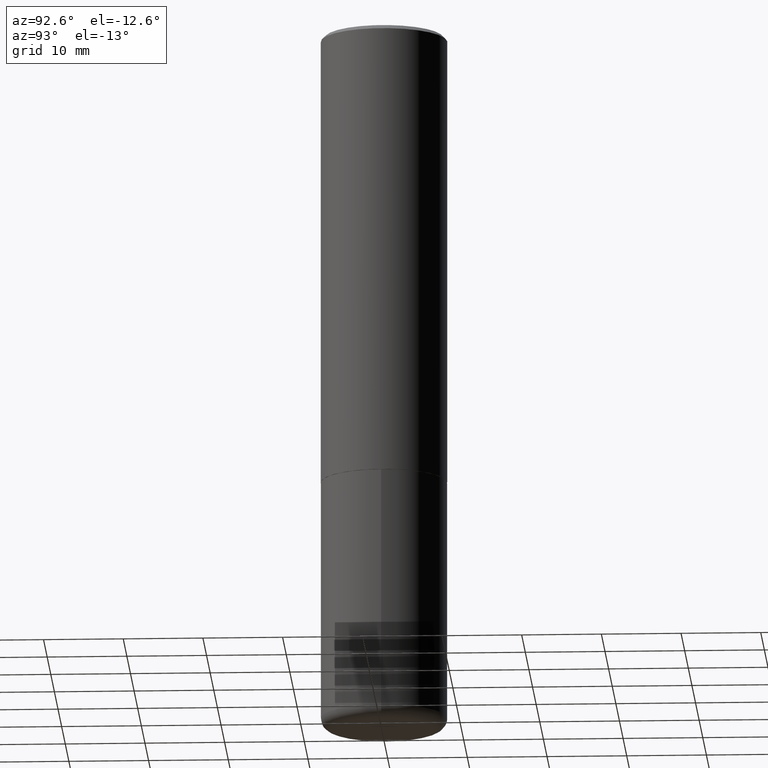
[diagram: clean part render]
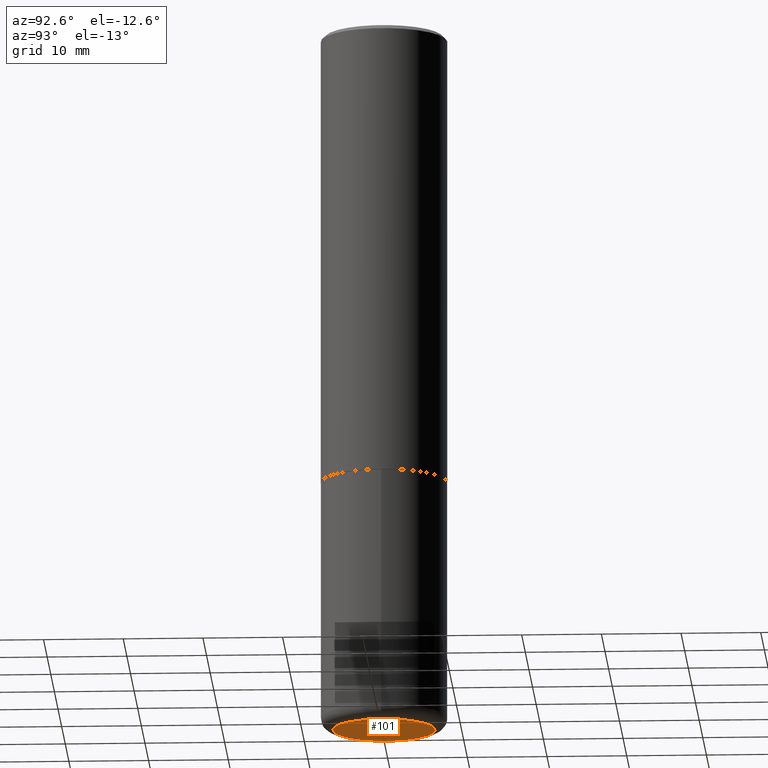
[diagram: same view with one face highlighted and labeled with its STEP entity id]
A machine part, auxiliary view. The second image highlights one B-rep face of the part: STEP entity #101.
In plain terms, the highlighted planar face has unit normal (0, -0, -1).
Its self-contained STEP definition (entity closure, byte-faithful):
#5 = VERTEX_POINT ( 'NONE', #163 ) ;
#6 = ORIENTED_EDGE ( 'NONE', *, *, #63, .F. ) ;
#38 = ORIENTED_EDGE ( 'NONE', *, *, #93, .F. ) ;
#40 = CARTESIAN_POINT ( 'NONE',  ( 8.559140821647976968E-29, -1.222018468595100934E-14, -3.500000000000000000 ) ) ;
#43 = CARTESIAN_POINT ( 'NONE',  ( 8.559140821647976968E-29, -1.222018468595100934E-14, -3.500000000000000000 ) ) ;
#60 = EDGE_LOOP ( 'NONE', ( #6, #38 ) ) ;
#63 = EDGE_CURVE ( 'NONE', #371, #5, #148, .T. ) ;
#65 = CIRCLE ( 'NONE', #288, 0.2525000000000000022 ) ;
#87 = FACE_OUTER_BOUND ( 'NONE', #60, .T. ) ;
#93 = EDGE_CURVE ( 'NONE', #5, #371, #65, .T. ) ;
#101 = ADVANCED_FACE ( 'NONE', ( #87 ), #113, .T. ) ;
#113 = PLANE ( 'NONE',  #405 ) ;
#122 = CARTESIAN_POINT ( 'NONE',  ( 8.559140821647976968E-29, -1.222018468595100934E-14, -3.500000000000000000 ) ) ;
#148 = CIRCLE ( 'NONE', #373, 0.2525000000000000022 ) ;
#163 = CARTESIAN_POINT ( 'NONE',  ( -0.2525000000000000022, -1.010815701726343156E-14, -3.500000000000000000 ) ) ;
#187 = DIRECTION ( 'NONE',  ( 1.000000000000000000, -6.982962677686269866E-15, 0.000000000000000000 ) ) ;
#191 = DIRECTION ( 'NONE',  ( -2.445468806185136597E-29, 3.491481338843145583E-15, 1.000000000000000000 ) ) ;
#193 = DIRECTION ( 'NONE',  ( 1.000000000000000000, -6.982962677686269866E-15, 0.000000000000000000 ) ) ;
#220 = DIRECTION ( 'NONE',  ( -1.000000000000000000, 6.982962677686265922E-15, -4.876176775795935793E-29 ) ) ;
#288 = AXIS2_PLACEMENT_3D ( 'NONE', #122, #319, #187 ) ;
#319 = DIRECTION ( 'NONE',  ( -2.445468806185136597E-29, 3.491481338843145583E-15, 1.000000000000000000 ) ) ;
#346 = DIRECTION ( 'NONE',  ( 2.438088387897960049E-29, -3.491481338843145188E-15, -1.000000000000000000 ) ) ;
#371 = VERTEX_POINT ( 'NONE', #384 ) ;
#373 = AXIS2_PLACEMENT_3D ( 'NONE', #43, #191, #193 ) ;
#384 = CARTESIAN_POINT ( 'NONE',  ( 0.2525000000000000022, -1.398338276206679106E-14, -3.500000000000000000 ) ) ;
#405 = AXIS2_PLACEMENT_3D ( 'NONE', #40, #346, #220 ) ;